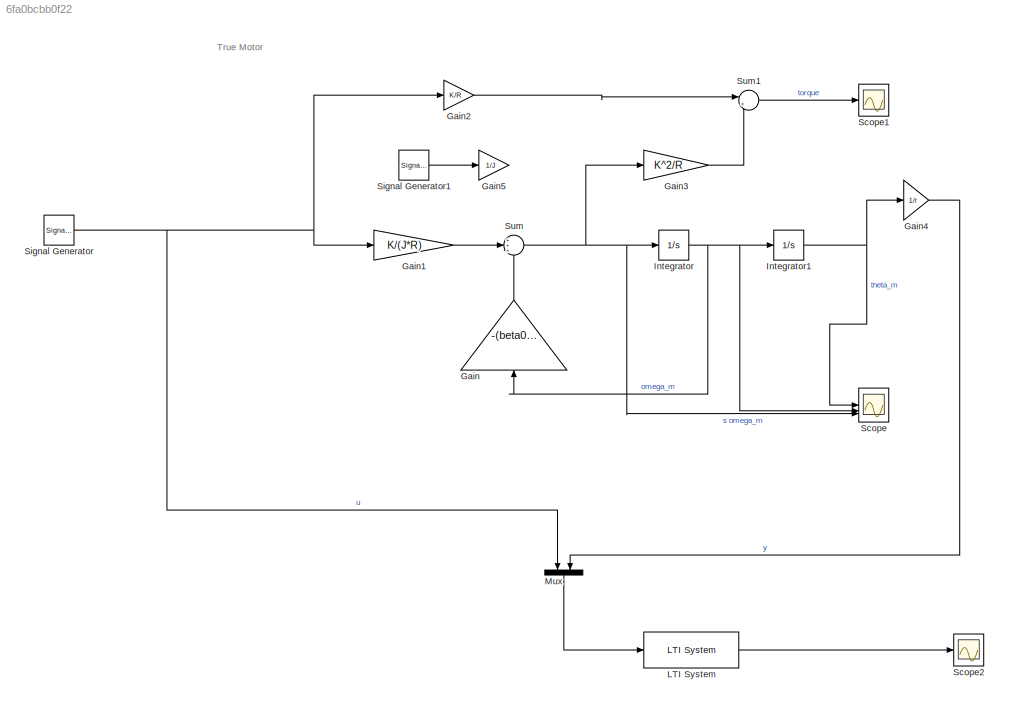
MODEL slx_6fa0bcbb0f22
KIND model
CONFIG AbsTol = auto
CONFIG EnableMultiTasking = off
CONFIG FixedStep = auto
CONFIG MaxStep = 0.1
CONFIG MinStep = auto
CONFIG RelTol = 1e-3
CONFIG SampleTimeConstraint = Unconstrained
CONFIG SolverName = VariableStepAuto
CONFIG StartTime = 0.0
CONFIG StopTime = 20
BLOCK [Gain] Gain
  Gain = -(beta0+(K^2)/R)/J
  NameLocation = right
BLOCK [Gain] Gain1
  Gain = K/(J*R)
BLOCK [Gain] Gain2
  Gain = K/R
BLOCK [Gain] Gain3
  Gain = K^2/R
BLOCK [Gain] Gain4
  Gain = 1/r
BLOCK [Gain] Gain5
  Gain = 1/J
BLOCK [Integrator] Integrator
BLOCK [Integrator] Integrator1
BLOCK [Reference] LTI System  REF=cstblocks/LTI System
  SourceBlock = cstblocks/LTI System
  SourceType = LTI Block
BLOCK [Mux] Mux
  DisplayOption = bar
  Inputs = 2
  NameLocation = left
BLOCK [Scope] Scope
  Floating = off
  NumInputPorts = 3
  ScopeSpecificationString = Simulink.scopes.TimeScopeBlockCfg('CurrentConfiguration', extmgr.ConfigurationSet(extmgr.Configuration('Core','General UI',true),extmgr.Configuration('Core','Source UI',true),extmgr.Configuration('Sources','WiredSimulink',true),extmgr.Configuration('Visuals','Time Domain',true,'SerializedDisplays',{struct('MinYLimReal','-0.21131','MaxYLimReal','0.21131','YLabelReal','','MinYLimMag','0.00000','MaxY...<+1552ch>
BLOCK [Scope] Scope1
  Floating = off
  NumInputPorts = 1
  ScopeSpecificationString = Simulink.scopes.TimeScopeBlockCfg('CurrentConfiguration', extmgr.ConfigurationSet(extmgr.Configuration('Core','General UI',true),extmgr.Configuration('Core','Source UI',true),extmgr.Configuration('Sources','WiredSimulink',true,'DataLoggingVariableName','ScopeData1'),extmgr.Configuration('Visuals','Time Domain',true,'SerializedDisplays',{struct('MinYLimReal','-0.00369','MaxYLimReal','0.00369','YLab...<+1454ch>
BLOCK [Scope] Scope2
  Floating = off
  NumInputPorts = 1
  ScopeSpecificationString = Simulink.scopes.TimeScopeBlockCfg('CurrentConfiguration', extmgr.ConfigurationSet(extmgr.Configuration('Core','General UI',true),extmgr.Configuration('Core','Source UI',true),extmgr.Configuration('Sources','WiredSimulink',true,'DataLoggingVariableName','ScopeData2'),extmgr.Configuration('Visuals','Time Domain',true,'SerializedDisplays',{struct('MinYLimReal','-0.00192','MaxYLimReal','0.00239','YLab...<+1720ch>
BLOCK [SignalGenerator] Signal Generator
  Frequency = 3
  Units = rad/sec
BLOCK [SignalGenerator] Signal Generator1
  Amplitude = 0.001
  Frequency = 0.1
  Units = rad/sec
BLOCK [Sum] Sum
  Inputs = +++
BLOCK [Sum] Sum1
  Inputs = |+-
ANNOTATION (root): True Motor
LINE Gain1:1 -> Sum:2
LINE Gain2:1 -> Sum1:1
LINE Gain3:1 -> Sum1:2
LINE Gain4:1 -> Mux:2
LINE Gain:1 -> Sum:3
NET Integrator1:1 -> Gain4:1, Scope:1
NET Integrator:1 -> Gain:1, Integrator1:1, Scope:2
LINE LTI System:1 -> Scope2:1
LINE Mux:1 -> LTI System:1
LINE Signal Generator1:1 -> Gain5:1
NET Signal Generator:1 -> Gain1:1, Gain2:1, Mux:1
LINE Sum1:1 -> Scope1:1
NET Sum:1 -> Gain3:1, Integrator:1, Scope:3
note: NET lines group one-source signal fan-out (src -> all destinations, sorted); 1:1 wires keep LINE
